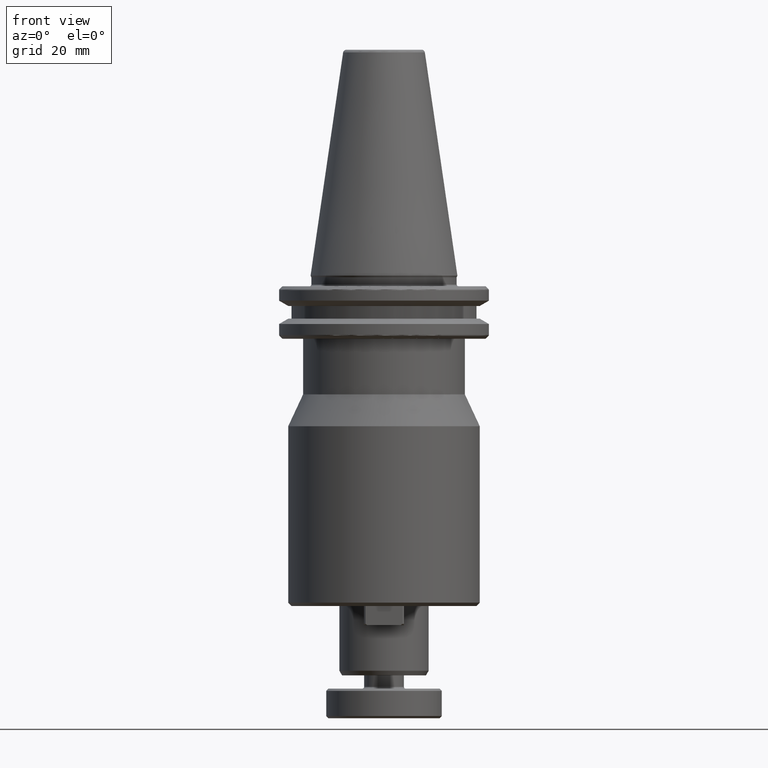
[diagram: clean part render]
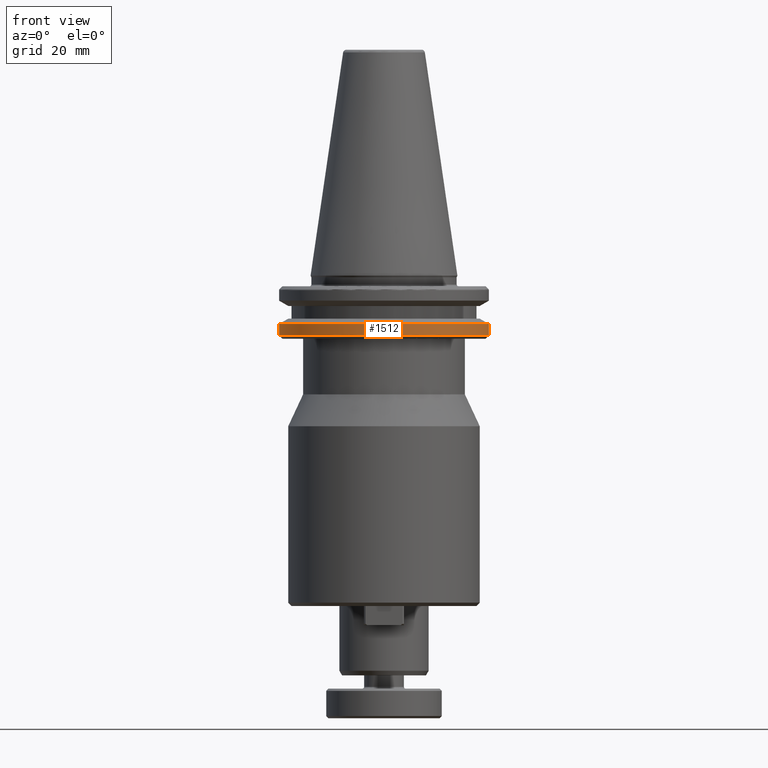
[diagram: same view with one face highlighted and labeled with its STEP entity id]
A machine part, front view. The second image highlights one B-rep face of the part: STEP entity #1512.
In plain terms, the highlighted cylindrical surface (partial cylindrical patch) has radius 31.75 mm, axis along (0, 0, 1).
Its self-contained STEP definition (entity closure, byte-faithful):
#140 = CARTESIAN_POINT ( 'NONE',  ( 31.75000000000000000, 0.0000000000000000000, -14.62183664205671200 ) ) ;
#160 = CARTESIAN_POINT ( 'NONE',  ( -31.74999999999998600, 3.888253587292850400E-015, -17.93431457505076300 ) ) ;
#239 = EDGE_CURVE ( 'NONE', #3142, #3890, #4062, .T. ) ;
#374 = AXIS2_PLACEMENT_3D ( 'NONE', #444, #443, #438 ) ;
#407 = AXIS2_PLACEMENT_3D ( 'NONE', #1489, #1470, #1449 ) ;
#438 = DIRECTION ( 'NONE',  ( 1.000000000000000000, 0.0000000000000000000, 0.0000000000000000000 ) ) ;
#443 = DIRECTION ( 'NONE',  ( 0.0000000000000000000, 0.0000000000000000000, 1.000000000000000000 ) ) ;
#444 = CARTESIAN_POINT ( 'NONE',  ( 0.0000000000000000000, 0.0000000000000000000, -17.93431457505076300 ) ) ;
#650 = LINE ( 'NONE', #705, #2308 ) ;
#661 = ORIENTED_EDGE ( 'NONE', *, *, #239, .T. ) ;
#694 = DIRECTION ( 'NONE',  ( 0.0000000000000000000, 0.0000000000000000000, 1.000000000000000000 ) ) ;
#705 = CARTESIAN_POINT ( 'NONE',  ( -31.75000000000000000, 3.888253587292846500E-015, 113.5216080541959500 ) ) ;
#761 = CIRCLE ( 'NONE', #374, 31.75000000000000000 ) ;
#835 = VERTEX_POINT ( 'NONE', #2291 ) ;
#875 = ORIENTED_EDGE ( 'NONE', *, *, #2009, .T. ) ;
#1050 = CARTESIAN_POINT ( 'NONE',  ( 31.74999999999998600, 3.081487911019577400E-030, -17.93431457505076300 ) ) ;
#1084 = CIRCLE ( 'NONE', #407, 31.74999999999998600 ) ;
#1192 = EDGE_CURVE ( 'NONE', #1694, #2550, #761, .T. ) ;
#1337 = ORIENTED_EDGE ( 'NONE', *, *, #1780, .T. ) ;
#1360 = AXIS2_PLACEMENT_3D ( 'NONE', #3381, #1477, #3684 ) ;
#1401 = ORIENTED_EDGE ( 'NONE', *, *, #2543, .F. ) ;
#1449 = DIRECTION ( 'NONE',  ( 0.0000000000000000000, -1.000000000000000000, -1.092739197465705800E-016 ) ) ;
#1470 = DIRECTION ( 'NONE',  ( -0.0000000000000000000, -1.224606353822377300E-016, 1.000000000000000000 ) ) ;
#1475 = CYLINDRICAL_SURFACE ( 'NONE', #3849, 31.75000000000000000 ) ;
#1477 = DIRECTION ( 'NONE',  ( -0.0000000000000000000, -0.0000000000000000000, 1.000000000000000000 ) ) ;
#1489 = CARTESIAN_POINT ( 'NONE',  ( 0.0000000000000000000, 1.647172221650816800E-014, -17.93431457505076300 ) ) ;
#1492 = CARTESIAN_POINT ( 'NONE',  ( 0.0000000000000000000, 0.0000000000000000000, 113.5216080541959500 ) ) ;
#1512 = ADVANCED_FACE ( 'NONE', ( #3972 ), #1475, .T. ) ;
#1694 = VERTEX_POINT ( 'NONE', #3589 ) ;
#1780 = EDGE_CURVE ( 'NONE', #3952, #1694, #2593, .T. ) ;
#2009 = EDGE_CURVE ( 'NONE', #2550, #3142, #1084, .T. ) ;
#2096 = EDGE_CURVE ( 'NONE', #3952, #835, #650, .T. ) ;
#2291 = CARTESIAN_POINT ( 'NONE',  ( -31.75000000000000000, 3.888253587292846500E-015, -14.62183664205671200 ) ) ;
#2308 = VECTOR ( 'NONE', #694, 1000.000000000000000 ) ;
#2543 = EDGE_CURVE ( 'NONE', #835, #3890, #3619, .T. ) ;
#2550 = VERTEX_POINT ( 'NONE', #3072 ) ;
#2581 = CARTESIAN_POINT ( 'NONE',  ( 31.75000000000000000, 0.0000000000000000000, 113.5216080541959500 ) ) ;
#2593 = CIRCLE ( 'NONE', #2973, 31.74999999999998600 ) ;
#2786 = DIRECTION ( 'NONE',  ( 0.0000000000000000000, 0.0000000000000000000, 1.000000000000000000 ) ) ;
#2973 = AXIS2_PLACEMENT_3D ( 'NONE', #3017, #3007, #3039 ) ;
#3007 = DIRECTION ( 'NONE',  ( -0.0000000000000000000, -1.224606353822377300E-016, 1.000000000000000000 ) ) ;
#3017 = CARTESIAN_POINT ( 'NONE',  ( 0.0000000000000000000, 1.647172221650816800E-014, -17.93431457505076300 ) ) ;
#3039 = DIRECTION ( 'NONE',  ( 0.0000000000000000000, -1.000000000000000000, -1.092739197465705800E-016 ) ) ;
#3072 = CARTESIAN_POINT ( 'NONE',  ( 30.56296919415016300, -8.600431037885661200, -17.93431457505076300 ) ) ;
#3119 = DIRECTION ( 'NONE',  ( 0.0000000000000000000, 0.0000000000000000000, 1.000000000000000000 ) ) ;
#3142 = VERTEX_POINT ( 'NONE', #1050 ) ;
#3268 = VECTOR ( 'NONE', #2786, 1000.000000000000000 ) ;
#3364 = EDGE_LOOP ( 'NONE', ( #3373, #1337, #3845, #875, #661, #1401 ) ) ;
#3373 = ORIENTED_EDGE ( 'NONE', *, *, #2096, .F. ) ;
#3381 = CARTESIAN_POINT ( 'NONE',  ( 0.0000000000000000000, 0.0000000000000000000, -14.62183664205671200 ) ) ;
#3589 = CARTESIAN_POINT ( 'NONE',  ( -30.52966748735165600, -8.717907037342271800, -17.93431457505076300 ) ) ;
#3619 = CIRCLE ( 'NONE', #1360, 31.75000000000000000 ) ;
#3684 = DIRECTION ( 'NONE',  ( -1.000000000000000000, 0.0000000000000000000, -5.463695987328526400E-017 ) ) ;
#3787 = DIRECTION ( 'NONE',  ( 1.000000000000000000, 0.0000000000000000000, 0.0000000000000000000 ) ) ;
#3845 = ORIENTED_EDGE ( 'NONE', *, *, #1192, .T. ) ;
#3849 = AXIS2_PLACEMENT_3D ( 'NONE', #1492, #3119, #3787 ) ;
#3890 = VERTEX_POINT ( 'NONE', #140 ) ;
#3952 = VERTEX_POINT ( 'NONE', #160 ) ;
#3972 = FACE_OUTER_BOUND ( 'NONE', #3364, .T. ) ;
#4062 = LINE ( 'NONE', #2581, #3268 ) ;